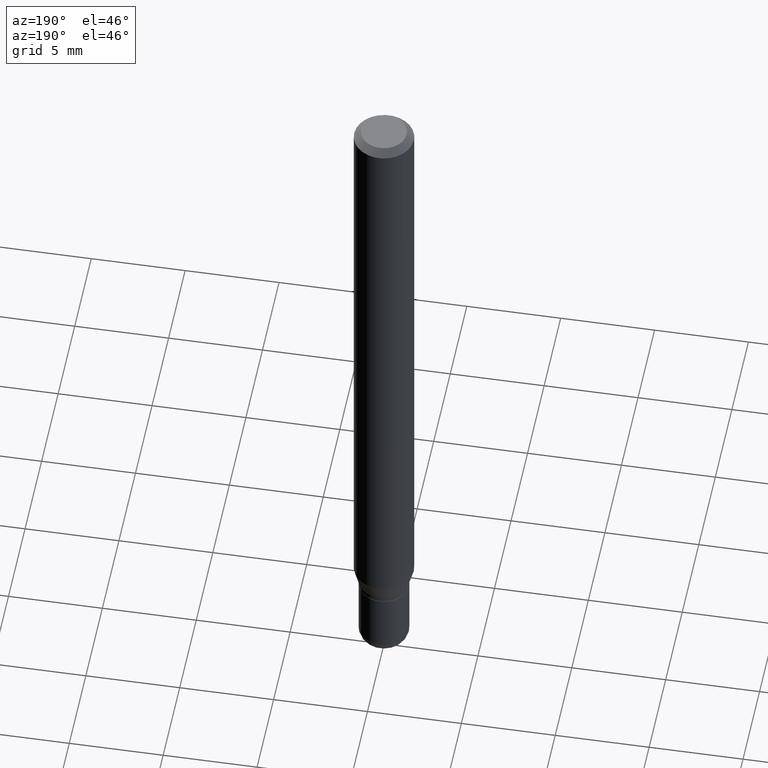
[diagram: clean part render]
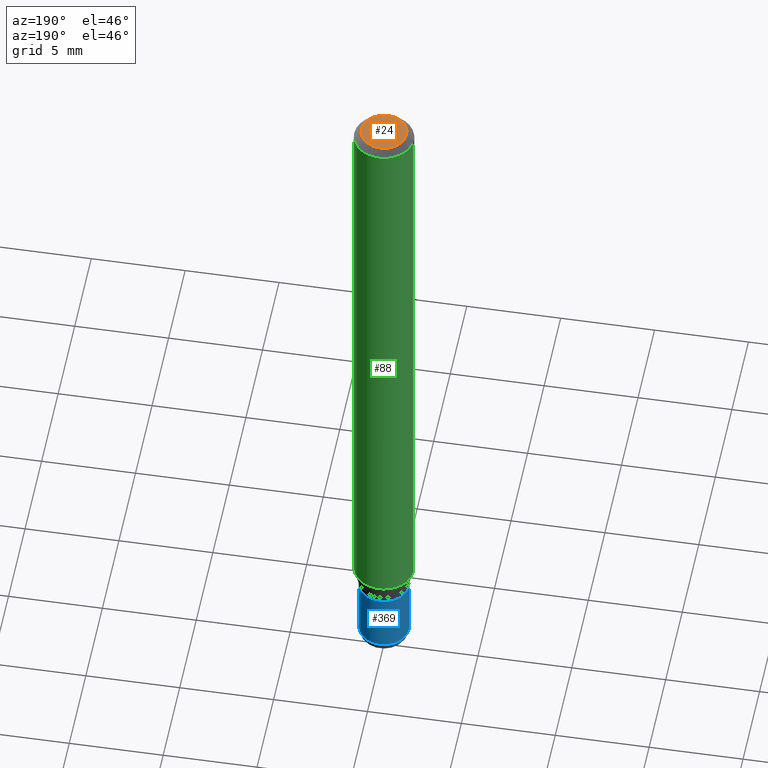
[diagram: same view with three faces highlighted in distinct colors, each labeled with its STEP entity id]
A machine part, auxiliary view with three faces highlighted in distinct colors.
Their STEP definitions:

[orange] entity #24 — the highlighted planar face has unit normal (0, -0, -1).
#7 = ORIENTED_EDGE ( 'NONE', *, *, #138, .T. ) ;
#12 = DIRECTION ( 'NONE',  ( -2.445468806185136597E-29, 3.491481338843145583E-15, 1.000000000000000000 ) ) ;
#24 = ADVANCED_FACE ( 'NONE', ( #367 ), #410, .F. ) ;
#30 = ORIENTED_EDGE ( 'NONE', *, *, #337, .T. ) ;
#45 = CARTESIAN_POINT ( 'NONE',  ( 3.316907271900976589E-16, 0.04750000000000000749, -2.925296391183627249E-17 ) ) ;
#63 = DIRECTION ( 'NONE',  ( -2.445468806185136597E-29, 3.491481338843145583E-15, 1.000000000000000000 ) ) ;
#74 = VERTEX_POINT ( 'NONE', #301 ) ;
#133 = CARTESIAN_POINT ( 'NONE',  ( -6.680649051745406845E-45, 9.538196290434862081E-31, 2.731847993664263218E-16 ) ) ;
#134 = CIRCLE ( 'NONE', #340, 0.04750000000000000749 ) ;
#138 = EDGE_CURVE ( 'NONE', #154, #74, #134, .T. ) ;
#154 = VERTEX_POINT ( 'NONE', #333 ) ;
#161 = DIRECTION ( 'NONE',  ( -1.000000000000000000, 6.982962677686265922E-15, -4.876176775795935793E-29 ) ) ;
#200 = AXIS2_PLACEMENT_3D ( 'NONE', #309, #63, #234 ) ;
#215 = DIRECTION ( 'NONE',  ( 1.000000000000000000, -6.982962677686266711E-15, 4.852736867747365086E-29 ) ) ;
#234 = DIRECTION ( 'NONE',  ( 1.000000000000000000, -6.982962677686266711E-15, 4.852736867747365086E-29 ) ) ;
#301 = CARTESIAN_POINT ( 'NONE',  ( 0.04750000000000000749, -4.035134999187568762E-16, 2.731847993664288856E-16 ) ) ;
#309 = CARTESIAN_POINT ( 'NONE',  ( -6.680649051745406845E-45, 9.538196290434862081E-31, 2.731847993664263218E-16 ) ) ;
#333 = CARTESIAN_POINT ( 'NONE',  ( -0.04750000000000000749, 3.578768372314221353E-16, 2.731847993664239060E-16 ) ) ;
#337 = EDGE_CURVE ( 'NONE', #74, #154, #360, .T. ) ;
#340 = AXIS2_PLACEMENT_3D ( 'NONE', #133, #12, #215 ) ;
#360 = CIRCLE ( 'NONE', #200, 0.04750000000000000749 ) ;
#367 = FACE_OUTER_BOUND ( 'NONE', #423, .T. ) ;
#410 = PLANE ( 'NONE',  #452 ) ;
#423 = EDGE_LOOP ( 'NONE', ( #7, #30 ) ) ;
#435 = DIRECTION ( 'NONE',  ( 2.438088387897960049E-29, -3.491481338843145188E-15, -1.000000000000000000 ) ) ;
#452 = AXIS2_PLACEMENT_3D ( 'NONE', #45, #435, #161 ) ;

[blue] entity #369 — the highlighted cylindrical surface (edge-blend (fillet) strip) has radius 1.3335 mm, axis along (-0, 0, 1).
#3 = DIRECTION ( 'NONE',  ( 1.000000000000000000, -6.982962677686266711E-15, 4.876176775795936353E-29 ) ) ;
#8 = CARTESIAN_POINT ( 'NONE',  ( 3.594839145092150820E-29, -5.132477568099424807E-15, -1.470000000000000195 ) ) ;
#35 = CARTESIAN_POINT ( 'NONE',  ( -0.05249999999999999806, -4.536860696474120707E-15, -1.342500000000000249 ) ) ;
#37 = CARTESIAN_POINT ( 'NONE',  ( -0.05250000000000009520, -4.536860696474119918E-15, -1.470000000000000195 ) ) ;
#39 = ORIENTED_EDGE ( 'NONE', *, *, #269, .T. ) ;
#48 = DIRECTION ( 'NONE',  ( -2.445468806185136877E-29, 3.491481338843145188E-15, 1.000000000000000000 ) ) ;
#51 = CARTESIAN_POINT ( 'NONE',  ( 3.283041872303546419E-29, -4.687313697396923253E-15, -1.342500000000000249 ) ) ;
#56 = ORIENTED_EDGE ( 'NONE', *, *, #317, .F. ) ;
#64 = CIRCLE ( 'NONE', #208, 0.05250000000000010908 ) ;
#70 = DIRECTION ( 'NONE',  ( -2.445468806185136877E-29, 3.491481338843145188E-15, 1.000000000000000000 ) ) ;
#76 = DIRECTION ( 'NONE',  ( 1.000000000000000000, -6.982962677686272233E-15, 0.000000000000000000 ) ) ;
#77 = DIRECTION ( 'NONE',  ( -2.445468806185136597E-29, 3.491481338843145583E-15, 1.000000000000000000 ) ) ;
#90 = VERTEX_POINT ( 'NONE', #96 ) ;
#93 = VECTOR ( 'NONE', #70, 39.37007874015748143 ) ;
#96 = CARTESIAN_POINT ( 'NONE',  ( 0.05250000000000010908, -5.499083108677954756E-15, -1.470000000000000195 ) ) ;
#102 = EDGE_LOOP ( 'NONE', ( #356, #39, #56, #238 ) ) ;
#110 = CARTESIAN_POINT ( 'NONE',  ( 0.05250000000000005357, -3.666055405785293573E-16, 2.559992807292869164E-30 ) ) ;
#117 = DIRECTION ( 'NONE',  ( -2.445468806185136597E-29, 3.491481338843145583E-15, 1.000000000000000000 ) ) ;
#130 = AXIS2_PLACEMENT_3D ( 'NONE', #481, #117, #3 ) ;
#164 = LINE ( 'NONE', #110, #485 ) ;
#208 = AXIS2_PLACEMENT_3D ( 'NONE', #8, #77, #76 ) ;
#224 = VERTEX_POINT ( 'NONE', #37 ) ;
#238 = ORIENTED_EDGE ( 'NONE', *, *, #368, .F. ) ;
#248 = FACE_OUTER_BOUND ( 'NONE', #102, .T. ) ;
#269 = EDGE_CURVE ( 'NONE', #224, #345, #314, .T. ) ;
#284 = DIRECTION ( 'NONE',  ( 1.000000000000000000, -6.982962677686268288E-15, 0.000000000000000000 ) ) ;
#304 = AXIS2_PLACEMENT_3D ( 'NONE', #51, #378, #284 ) ;
#314 = LINE ( 'NONE', #470, #93 ) ;
#317 = EDGE_CURVE ( 'NONE', #476, #345, #504, .T. ) ;
#338 = CARTESIAN_POINT ( 'NONE',  ( 0.05249999999999999806, -5.053919237975452413E-15, -1.342500000000000249 ) ) ;
#345 = VERTEX_POINT ( 'NONE', #35 ) ;
#356 = ORIENTED_EDGE ( 'NONE', *, *, #417, .T. ) ;
#368 = EDGE_CURVE ( 'NONE', #90, #476, #164, .T. ) ;
#369 = ADVANCED_FACE ( 'NONE', ( #248 ), #406, .T. ) ;
#378 = DIRECTION ( 'NONE',  ( -2.445468806185136597E-29, 3.491481338843145583E-15, 1.000000000000000000 ) ) ;
#406 = CYLINDRICAL_SURFACE ( 'NONE', #130, 0.05250000000000005357 ) ;
#417 = EDGE_CURVE ( 'NONE', #90, #224, #64, .T. ) ;
#470 = CARTESIAN_POINT ( 'NONE',  ( -0.05250000000000005357, 3.730349362740529782E-16, -2.582440922383828464E-30 ) ) ;
#476 = VERTEX_POINT ( 'NONE', #338 ) ;
#481 = CARTESIAN_POINT ( 'NONE',  ( 0.000000000000000000, 0.000000000000000000, 0.000000000000000000 ) ) ;
#485 = VECTOR ( 'NONE', #48, 39.37007874015748143 ) ;
#504 = CIRCLE ( 'NONE', #304, 0.05249999999999999806 ) ;

[green] entity #88 — the highlighted cylindrical surface (edge-blend (fillet) strip) has radius 1.5875 mm, axis along (-0, 0, 1).
#9 = EDGE_CURVE ( 'NONE', #229, #146, #83, .T. ) ;
#22 = CARTESIAN_POINT ( 'NONE',  ( 0.000000000000000000, 0.000000000000000000, 0.000000000000000000 ) ) ;
#31 = EDGE_CURVE ( 'NONE', #67, #229, #510, .T. ) ;
#36 = AXIS2_PLACEMENT_3D ( 'NONE', #22, #257, #53 ) ;
#43 = AXIS2_PLACEMENT_3D ( 'NONE', #201, #281, #437 ) ;
#53 = DIRECTION ( 'NONE',  ( 1.000000000000000000, -6.982962677686266711E-15, 4.876176775795935793E-29 ) ) ;
#66 = AXIS2_PLACEMENT_3D ( 'NONE', #145, #101, #307 ) ;
#67 = VERTEX_POINT ( 'NONE', #163 ) ;
#83 = LINE ( 'NONE', #359, #239 ) ;
#88 = ADVANCED_FACE ( 'NONE', ( #381 ), #297, .T. ) ;
#101 = DIRECTION ( 'NONE',  ( -2.445468806185136597E-29, 3.491481338843145583E-15, 1.000000000000000000 ) ) ;
#124 = DIRECTION ( 'NONE',  ( -2.445468806185136877E-29, 3.491481338843145188E-15, 1.000000000000000000 ) ) ;
#145 = CARTESIAN_POINT ( 'NONE',  ( 3.668203209277632395E-31, -5.237222008264614861E-17, -0.01499999999999970281 ) ) ;
#146 = VERTEX_POINT ( 'NONE', #212 ) ;
#152 = VERTEX_POINT ( 'NONE', #174 ) ;
#163 = CARTESIAN_POINT ( 'NONE',  ( 0.06250000000000000000, -4.956784453192051541E-15, -1.294679491924312087 ) ) ;
#174 = CARTESIAN_POINT ( 'NONE',  ( 0.06250000000000000000, -4.888073874380378612E-16, -0.01499999999999970281 ) ) ;
#175 = ORIENTED_EDGE ( 'NONE', *, *, #219, .F. ) ;
#201 = CARTESIAN_POINT ( 'NONE',  ( 3.166098311508526589E-29, -4.520349285836659871E-15, -1.294679491924312087 ) ) ;
#212 = CARTESIAN_POINT ( 'NONE',  ( -0.06250000000000000000, -1.842271543109590267E-15, -0.01499999999999970281 ) ) ;
#219 = EDGE_CURVE ( 'NONE', #152, #146, #353, .T. ) ;
#226 = VECTOR ( 'NONE', #124, 39.37007874015748143 ) ;
#229 = VERTEX_POINT ( 'NONE', #419 ) ;
#239 = VECTOR ( 'NONE', #318, 39.37007874015748143 ) ;
#257 = DIRECTION ( 'NONE',  ( -2.445468806185136597E-29, 3.491481338843145583E-15, 1.000000000000000000 ) ) ;
#281 = DIRECTION ( 'NONE',  ( -2.445468806185136597E-29, 3.491481338843145583E-15, 1.000000000000000000 ) ) ;
#296 = ORIENTED_EDGE ( 'NONE', *, *, #450, .F. ) ;
#297 = CYLINDRICAL_SURFACE ( 'NONE', #36, 0.06250000000000000000 ) ;
#307 = DIRECTION ( 'NONE',  ( 1.000000000000000000, -6.982962677686266711E-15, 0.000000000000000000 ) ) ;
#318 = DIRECTION ( 'NONE',  ( -2.445468806185136877E-29, 3.491481338843145188E-15, 1.000000000000000000 ) ) ;
#323 = LINE ( 'NONE', #445, #226 ) ;
#353 = CIRCLE ( 'NONE', #66, 0.06250000000000000000 ) ;
#359 = CARTESIAN_POINT ( 'NONE',  ( -0.06250000000000000000, 4.440892098500626162E-16, -3.074334431409316114E-30 ) ) ;
#381 = FACE_OUTER_BOUND ( 'NONE', #382, .T. ) ;
#382 = EDGE_LOOP ( 'NONE', ( #512, #479, #175, #296 ) ) ;
#419 = CARTESIAN_POINT ( 'NONE',  ( -0.06250000000000000000, -4.076260075986598044E-15, -1.294679491924312087 ) ) ;
#437 = DIRECTION ( 'NONE',  ( 1.000000000000000000, -6.982962677686262766E-15, 0.000000000000000000 ) ) ;
#445 = CARTESIAN_POINT ( 'NONE',  ( 0.06250000000000000000, -4.364351673553916694E-16, 3.047610484872459871E-30 ) ) ;
#450 = EDGE_CURVE ( 'NONE', #67, #152, #323, .T. ) ;
#479 = ORIENTED_EDGE ( 'NONE', *, *, #9, .T. ) ;
#510 = CIRCLE ( 'NONE', #43, 0.06250000000000000000 ) ;
#512 = ORIENTED_EDGE ( 'NONE', *, *, #31, .T. ) ;